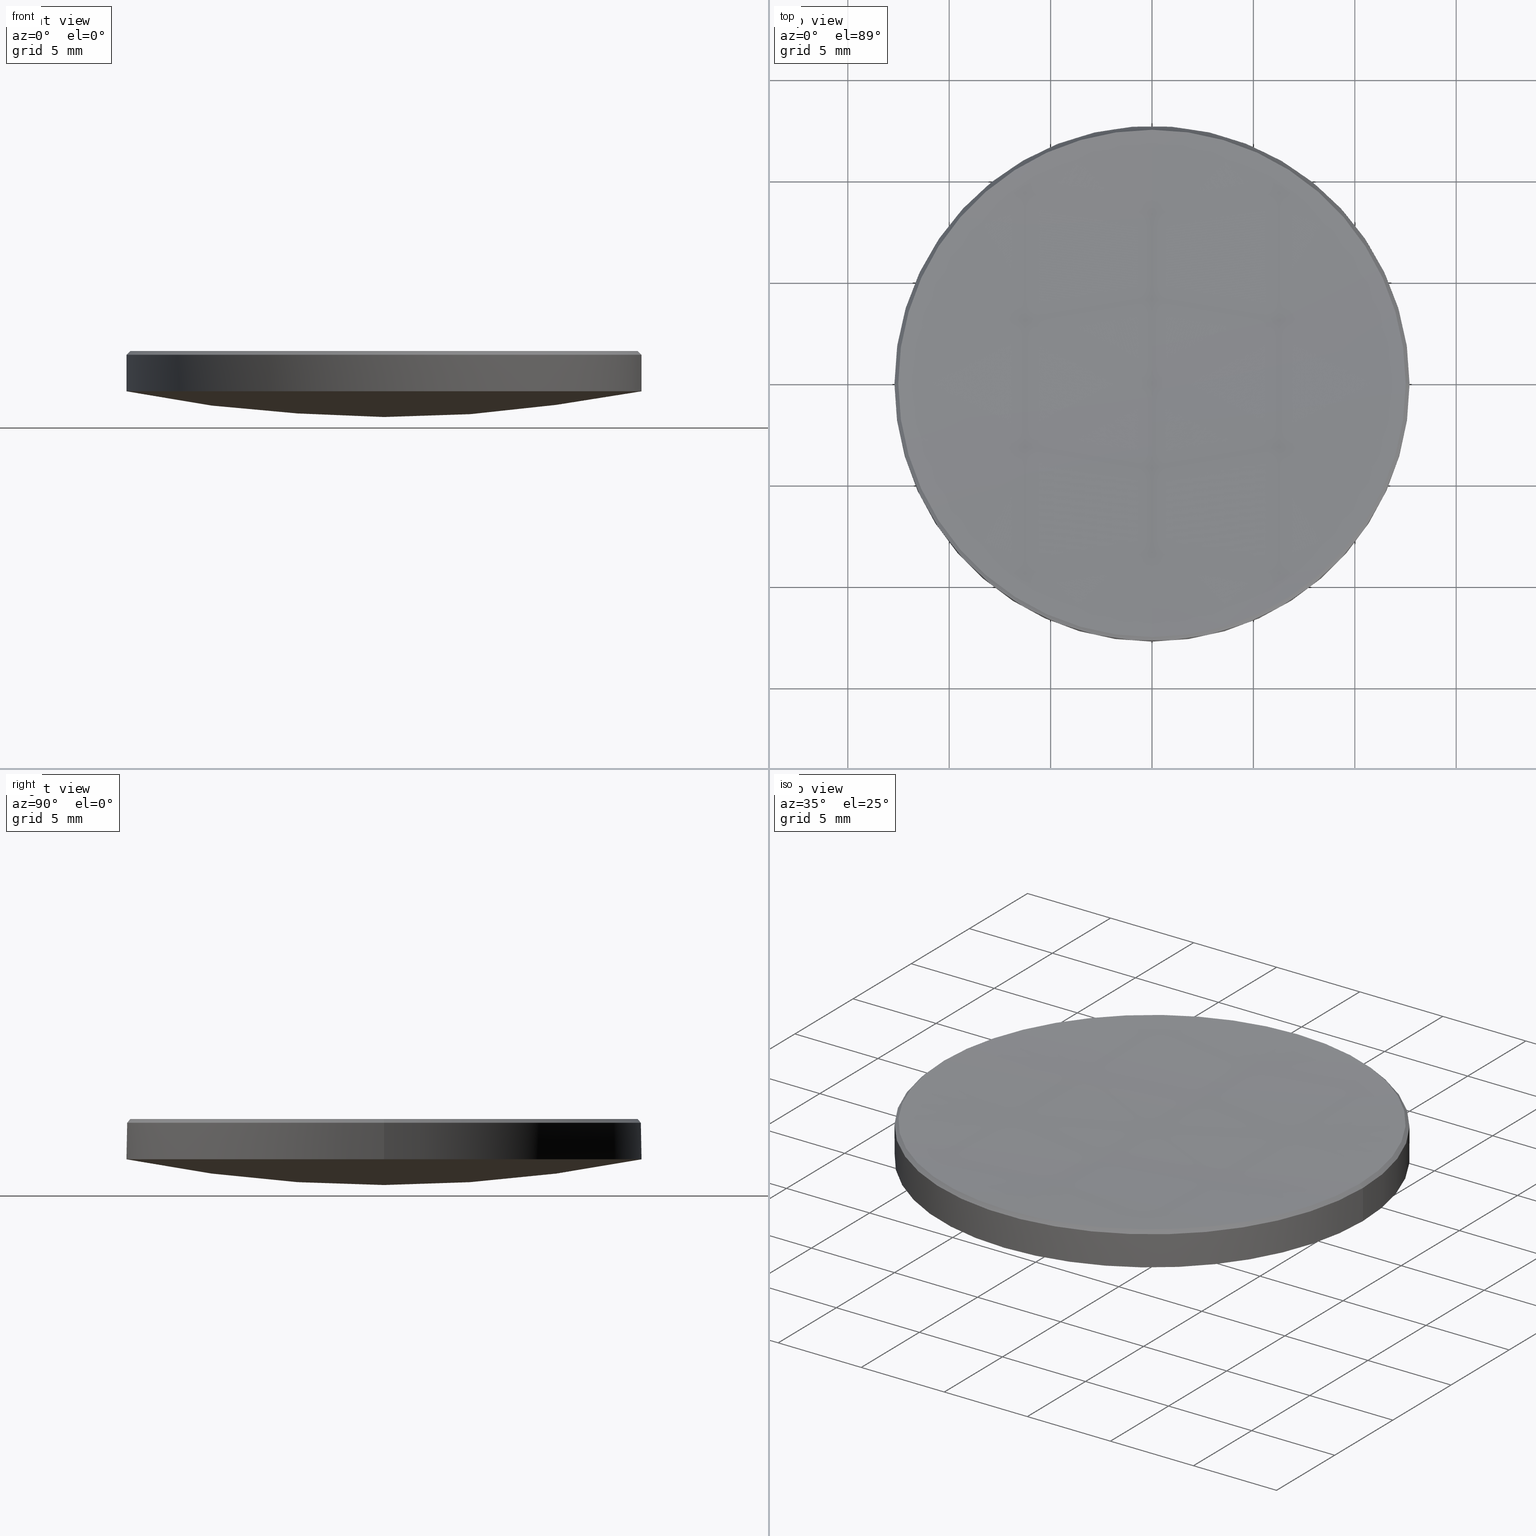
[diagram: canonical four-view strip — front | top / right | iso, engineering-drawing reading convention]
A machine part, canonical four-view strip (front | top / right | iso — engineering-drawing reading convention). The complete STEP part file that produces these views, byte-faithful:
ISO-10303-21;
HEADER;
FILE_DESCRIPTION (( 'STEP AP214' ),
    '1' );
FILE_NAME ('GLM2-025B-200.STEP',
    '2024-08-09T02:44:42',
    ( 'Windows User' ),
    ( 'P R C' ),
    'SwSTEP 2.0',
    'SolidWorks 2022',
    '' );
FILE_SCHEMA (( 'AUTOMOTIVE_DESIGN' ));
ENDSEC;

DATA;
#1 =( NAMED_UNIT ( * ) PLANE_ANGLE_UNIT ( ) SI_UNIT ( $, .RADIAN. ) );
#2 = VERTEX_POINT ( 'NONE', #72 ) ;
#3 = CARTESIAN_POINT ( 'NONE',  ( 0.000000000000000000, 0.000000000000000000, 5.988645407489862293 ) ) ;
#4 = APPLICATION_CONTEXT ( 'automotive_design' ) ;
#5 = EDGE_LOOP ( 'NONE', ( #123, #192, #46, #272, #129 ) ) ;
#6 = EDGE_CURVE ( 'NONE', #62, #2, #256, .T. ) ;
#7 = MECHANICAL_DESIGN_GEOMETRIC_PRESENTATION_REPRESENTATION (  '', ( #200 ), #280 ) ;
#8 = CARTESIAN_POINT ( 'NONE',  ( 0.000000000000000000, 0.000000000000000000, 4.000000000000000000 ) ) ;
#9 = CARTESIAN_POINT ( 'NONE',  ( 0.000000000000000000, 0.000000000000000000, 66.97211763947595387 ) ) ;
#10 = EDGE_CURVE ( 'NONE', #2, #38, #89, .T. ) ;
#11 = SPHERICAL_SURFACE ( 'NONE', #53, 209.8100000000000023 ) ;
#12 = CARTESIAN_POINT ( 'NONE',  ( -12.69999999999999929, 0.000000000000000000, 5.799999999999999822 ) ) ;
#13 = CIRCLE ( 'NONE', #181, 12.69999999999999929 ) ;
#14 = ORIENTED_EDGE ( 'NONE', *, *, #282, .T. ) ;
#15 = PRODUCT_DEFINITION_CONTEXT ( 'detailed design', #22, 'design' ) ;
#16 = DIRECTION ( 'NONE',  ( 1.000000000000000000, 0.000000000000000000, 0.000000000000000000 ) ) ;
#17 = DIRECTION ( 'NONE',  ( -1.000000000000000000, 0.000000000000000000, 0.000000000000000000 ) ) ;
#18 = EDGE_CURVE ( 'NONE', #230, #2, #270, .T. ) ;
#19 = DIRECTION ( 'NONE',  ( 1.000000000000000000, 0.000000000000000000, 0.000000000000000000 ) ) ;
#20 = ORIENTED_EDGE ( 'NONE', *, *, #71, .T. ) ;
#21 = DIRECTION ( 'NONE',  ( 0.000000000000000000, 0.000000000000000000, -1.000000000000000000 ) ) ;
#22 = APPLICATION_CONTEXT ( 'automotive_design' ) ;
#23 = ADVANCED_FACE ( 'NONE', ( #240 ), #48, .T. ) ;
#24 =( NAMED_UNIT ( * ) PLANE_ANGLE_UNIT ( ) SI_UNIT ( $, .RADIAN. ) );
#25 = PRODUCT_CONTEXT ( 'NONE', #4, 'mechanical' ) ;
#26 = DIRECTION ( 'NONE',  ( -1.000000000000000000, 0.000000000000000000, 0.000000000000000000 ) ) ;
#27 = EDGE_CURVE ( 'NONE', #62, #153, #117, .T. ) ;
#28 = PRESENTATION_LAYER_ASSIGNMENT (  '', '', ( #114 ) ) ;
#29 = CARTESIAN_POINT ( 'NONE',  ( 0.000000000000000000, 0.000000000000000000, 5.988645407489862293 ) ) ;
#30 = FACE_OUTER_BOUND ( 'NONE', #259, .T. ) ;
#31 = DIRECTION ( 'NONE',  ( -1.000000000000000000, 1.224646799147353207E-16, 0.000000000000000000 ) ) ;
#32 = SPHERICAL_SURFACE ( 'NONE', #66, 209.8100000000000023 ) ;
#33 = EDGE_CURVE ( 'NONE', #149, #74, #198, .T. ) ;
#34 = DIRECTION ( 'NONE',  ( -1.000000000000000000, 0.000000000000000000, 0.000000000000000000 ) ) ;
#35 = ORIENTED_EDGE ( 'NONE', *, *, #64, .T. ) ;
#36 = AXIS2_PLACEMENT_3D ( 'NONE', #210, #128, #111 ) ;
#37 = FACE_OUTER_BOUND ( 'NONE', #253, .T. ) ;
#38 = VERTEX_POINT ( 'NONE', #94 ) ;
#39 = FACE_OUTER_BOUND ( 'NONE', #206, .T. ) ;
#40 = ORIENTED_EDGE ( 'NONE', *, *, #6, .T. ) ;
#41 = AXIS2_PLACEMENT_3D ( 'NONE', #157, #246, #99 ) ;
#42 = AXIS2_PLACEMENT_3D ( 'NONE', #152, #281, #45 ) ;
#43 = ADVANCED_FACE ( 'NONE', ( #243 ), #180, .T. ) ;
#44 = APPLICATION_PROTOCOL_DEFINITION ( 'draft international standard', 'automotive_design', 1998, #4 ) ;
#45 = DIRECTION ( 'NONE',  ( 0.000000000000000000, 0.000000000000000000, -1.000000000000000000 ) ) ;
#46 = ORIENTED_EDGE ( 'NONE', *, *, #76, .T. ) ;
#47 = SHAPE_DEFINITION_REPRESENTATION ( #183, #242 ) ;
#48 = CYLINDRICAL_SURFACE ( 'NONE', #135, 12.69999999999999929 ) ;
#49 = DIRECTION ( 'NONE',  ( 1.000000000000000000, 0.000000000000000000, 0.000000000000000000 ) ) ;
#50 = ORIENTED_EDGE ( 'NONE', *, *, #33, .F. ) ;
#51 = EDGE_CURVE ( 'NONE', #154, #153, #238, .T. ) ;
#52 = CARTESIAN_POINT ( 'NONE',  ( 0.000000000000000000, 0.000000000000000000, 5.988645407489833872 ) ) ;
#53 = AXIS2_PLACEMENT_3D ( 'NONE', #268, #103, #77 ) ;
#54 = DIRECTION ( 'NONE',  ( 0.000000000000000000, 1.000000000000000000, 0.000000000000000000 ) ) ;
#55 = AXIS2_PLACEMENT_3D ( 'NONE', #9, #34, #54 ) ;
#56 = CARTESIAN_POINT ( 'NONE',  ( 0.000000000000000000, 0.000000000000000000, 66.97211763947595387 ) ) ;
#57 = EDGE_CURVE ( 'NONE', #234, #191, #109, .T. ) ;
#58 = ORIENTED_EDGE ( 'NONE', *, *, #10, .F. ) ;
#59 = CARTESIAN_POINT ( 'NONE',  ( 12.51135459251022652, 1.543750235194328238E-15, 5.988645407489862293 ) ) ;
#60 = VERTEX_POINT ( 'NONE', #207 ) ;
#61 = CARTESIAN_POINT ( 'NONE',  ( 0.000000000000000000, 12.70000000000000995, 4.000000000000001776 ) ) ;
#62 = VERTEX_POINT ( 'NONE', #59 ) ;
#63 = SURFACE_STYLE_USAGE ( .BOTH. , #173 ) ;
#64 = EDGE_CURVE ( 'NONE', #216, #149, #260, .T. ) ;
#65 = AXIS2_PLACEMENT_3D ( 'NONE', #179, #155, #241 ) ;
#66 = AXIS2_PLACEMENT_3D ( 'NONE', #81, #164, #204 ) ;
#67 = FILL_AREA_STYLE_COLOUR ( '', #170 ) ;
#68 = EDGE_LOOP ( 'NONE', ( #190, #96, #20, #209, #92 ) ) ;
#69 = ORIENTED_EDGE ( 'NONE', *, *, #51, .F. ) ;
#70 = CIRCLE ( 'NONE', #222, 12.51135459251022652 ) ;
#71 = EDGE_CURVE ( 'NONE', #154, #191, #107, .T. ) ;
#72 = CARTESIAN_POINT ( 'NONE',  ( 0.000000000000000000, 12.51135459251053916, 5.988645407489848083 ) ) ;
#73 = AXIS2_PLACEMENT_3D ( 'NONE', #275, #257, #151 ) ;
#74 = VERTEX_POINT ( 'NONE', #144 ) ;
#75 = DIRECTION ( 'NONE',  ( 1.000000000000000000, 0.000000000000000000, 0.000000000000000000 ) ) ;
#76 = EDGE_CURVE ( 'NONE', #74, #234, #178, .T. ) ;
#77 = DIRECTION ( 'NONE',  ( 0.000000000000000000, 1.000000000000000000, 0.000000000000000000 ) ) ;
#78 = DIRECTION ( 'NONE',  ( -1.000000000000000000, 0.000000000000000000, 0.000000000000000000 ) ) ;
#79 = FACE_OUTER_BOUND ( 'NONE', #229, .T. ) ;
#80 = ORIENTED_EDGE ( 'NONE', *, *, #27, .T. ) ;
#81 = CARTESIAN_POINT ( 'NONE',  ( 0.000000000000000000, 0.000000000000000000, 215.4252756951748609 ) ) ;
#82 = CARTESIAN_POINT ( 'NONE',  ( 0.000000000000000000, 0.000000000000000000, 5.988645407489862293 ) ) ;
#83 = SURFACE_STYLE_FILL_AREA ( #171 ) ;
#84 = SURFACE_SIDE_STYLE ('',( #83 ) ) ;
#85 = SURFACE_STYLE_FILL_AREA ( #279 ) ;
#86 = ORIENTED_EDGE ( 'NONE', *, *, #64, .F. ) ;
#87 =( LENGTH_UNIT ( ) NAMED_UNIT ( * ) SI_UNIT ( .MILLI., .METRE. ) );
#88 = EDGE_CURVE ( 'NONE', #60, #62, #70, .T. ) ;
#89 = CIRCLE ( 'NONE', #93, 12.51135459251022652 ) ;
#90 =( GEOMETRIC_REPRESENTATION_CONTEXT ( 3 ) GLOBAL_UNCERTAINTY_ASSIGNED_CONTEXT ( ( #201 ) ) GLOBAL_UNIT_ASSIGNED_CONTEXT ( ( #87, #1, #193 ) ) REPRESENTATION_CONTEXT ( 'NONE', 'WORKASPACE' ) );
#91 = AXIS2_PLACEMENT_3D ( 'NONE', #277, #21, #17 ) ;
#92 = ORIENTED_EDGE ( 'NONE', *, *, #33, .T. ) ;
#93 = AXIS2_PLACEMENT_3D ( 'NONE', #29, #197, #49 ) ;
#94 = CARTESIAN_POINT ( 'NONE',  ( -12.51135459251022652, 0.000000000000000000, 5.988645407489862293 ) ) ;
#95 = PRODUCT ( 'GLM2-025B-200', 'GLM2-025B-200', '', ( #25 ) ) ;
#96 = ORIENTED_EDGE ( 'NONE', *, *, #220, .T. ) ;
#97 = DIRECTION ( 'NONE',  ( 0.7071067811864988339, 8.659560562354335050E-17, -0.7071067811865962005 ) ) ;
#98 = CLOSED_SHELL ( 'NONE', ( #266, #101, #136, #43, #23, #121, #194, #115 ) ) ;
#99 = DIRECTION ( 'NONE',  ( 1.000000000000000000, 0.000000000000000000, 0.000000000000000000 ) ) ;
#100 = DIRECTION ( 'NONE',  ( 0.000000000000000000, 1.000000000000000000, 0.000000000000000000 ) ) ;
#101 = ADVANCED_FACE ( 'NONE', ( #30 ), #11, .F. ) ;
#102 = DIRECTION ( 'NONE',  ( 0.000000000000000000, 0.000000000000000000, -1.000000000000000000 ) ) ;
#103 = DIRECTION ( 'NONE',  ( -1.000000000000000000, 0.000000000000000000, 0.000000000000000000 ) ) ;
#104 = PRODUCT_DEFINITION_FORMATION_WITH_SPECIFIED_SOURCE ( '�κ�', '', #95, .NOT_KNOWN. ) ;
#105 = ORIENTED_EDGE ( 'NONE', *, *, #88, .T. ) ;
#106 = DIRECTION ( 'NONE',  ( -0.7071067811864988339, 0.000000000000000000, -0.7071067811865962005 ) ) ;
#107 = LINE ( 'NONE', #250, #150 ) ;
#108 = ORIENTED_EDGE ( 'NONE', *, *, #225, .F. ) ;
#109 = CIRCLE ( 'NONE', #195, 12.69999999999999929 ) ;
#110 = DIRECTION ( 'NONE',  ( -0.000000000000000000, -0.000000000000000000, 1.000000000000000000 ) ) ;
#111 = DIRECTION ( 'NONE',  ( -1.224646799147353207E-16, -1.000000000000000000, 0.000000000000000000 ) ) ;
#112 = ORIENTED_EDGE ( 'NONE', *, *, #76, .F. ) ;
#113 = ORIENTED_EDGE ( 'NONE', *, *, #239, .F. ) ;
#114 = STYLED_ITEM ( 'NONE', ( #233 ), #242 ) ;
#115 = ADVANCED_FACE ( 'NONE', ( #247 ), #262, .T. ) ;
#116 = CARTESIAN_POINT ( 'NONE',  ( 0.000000000000000000, 0.000000000000000000, 215.4252756951748609 ) ) ;
#117 = LINE ( 'NONE', #156, #160 ) ;
#118 = AXIS2_PLACEMENT_3D ( 'NONE', #202, #102, #252 ) ;
#119 = DIRECTION ( 'NONE',  ( -1.000000000000000000, 0.000000000000000000, 0.000000000000000000 ) ) ;
#120 = DIRECTION ( 'NONE',  ( -0.000000000000000000, -0.000000000000000000, 1.000000000000000000 ) ) ;
#121 = ADVANCED_FACE ( 'NONE', ( #37 ), #226, .T. ) ;
#122 = LINE ( 'NONE', #205, #251 ) ;
#123 = ORIENTED_EDGE ( 'NONE', *, *, #51, .T. ) ;
#124 = DIRECTION ( 'NONE',  ( -0.000000000000000000, -0.000000000000000000, -1.000000000000000000 ) ) ;
#125 = ORIENTED_EDGE ( 'NONE', *, *, #57, .F. ) ;
#126 = EDGE_LOOP ( 'NONE', ( #172, #177, #108, #235, #199 ) ) ;
#127 = ORIENTED_EDGE ( 'NONE', *, *, #208, .F. ) ;
#128 = DIRECTION ( 'NONE',  ( -1.000000000000000000, 1.224646799147353207E-16, 0.000000000000000000 ) ) ;
#129 = ORIENTED_EDGE ( 'NONE', *, *, #71, .F. ) ;
#130 = DIRECTION ( 'NONE',  ( 1.000000000000000000, 0.000000000000000000, 0.000000000000000000 ) ) ;
#131 = AXIS2_PLACEMENT_3D ( 'NONE', #3, #265, #138 ) ;
#132 = ORIENTED_EDGE ( 'NONE', *, *, #18, .T. ) ;
#133 = CARTESIAN_POINT ( 'NONE',  ( 0.000000000000000000, 0.000000000000000000, 10.00000000000000000 ) ) ;
#134 = EDGE_LOOP ( 'NONE', ( #211, #132, #185, #264 ) ) ;
#135 = AXIS2_PLACEMENT_3D ( 'NONE', #133, #218, #26 ) ;
#136 = ADVANCED_FACE ( 'NONE', ( #79 ), #141, .T. ) ;
#137 = COLOUR_RGB ( '',1.000000000000000000, 1.000000000000000000, 1.000000000000000000 ) ;
#138 = DIRECTION ( 'NONE',  ( 1.000000000000000000, 0.000000000000000000, 0.000000000000000000 ) ) ;
#139 = CIRCLE ( 'NONE', #42, 64.23999999999999488 ) ;
#140 = DIRECTION ( 'NONE',  ( 0.000000000000000000, 0.000000000000000000, -1.000000000000000000 ) ) ;
#141 = SPHERICAL_SURFACE ( 'NONE', #55, 64.23999999999999488 ) ;
#142 = CARTESIAN_POINT ( 'NONE',  ( 12.69999999999999929, 1.555301434917138433E-15, 5.799999999999999822 ) ) ;
#143 = ORIENTED_EDGE ( 'NONE', *, *, #274, .F. ) ;
#144 = CARTESIAN_POINT ( 'NONE',  ( 12.69999999999999929, 1.555301434917138433E-15, 4.000000000000000000 ) ) ;
#145 = DIRECTION ( 'NONE',  ( -0.000000000000000000, -0.000000000000000000, -1.000000000000000000 ) ) ;
#146 = MECHANICAL_DESIGN_GEOMETRIC_PRESENTATION_REPRESENTATION (  '', ( #114 ), #90 ) ;
#147 = CARTESIAN_POINT ( 'NONE',  ( 0.000000000000000000, 1.284715724645530952E-14, 5.615275695174864801 ) ) ;
#148 =( NAMED_UNIT ( * ) PLANE_ANGLE_UNIT ( ) SI_UNIT ( $, .RADIAN. ) );
#149 = VERTEX_POINT ( 'NONE', #182 ) ;
#150 = VECTOR ( 'NONE', #124, 1000.000000000000000 ) ;
#151 = DIRECTION ( 'NONE',  ( 1.000000000000000000, 0.000000000000000000, 0.000000000000000000 ) ) ;
#152 = CARTESIAN_POINT ( 'NONE',  ( 0.000000000000000000, 0.000000000000000000, 66.97211763947595387 ) ) ;
#153 = VERTEX_POINT ( 'NONE', #142 ) ;
#154 = VERTEX_POINT ( 'NONE', #12 ) ;
#155 = DIRECTION ( 'NONE',  ( 0.000000000000000000, 0.000000000000000000, 1.000000000000000000 ) ) ;
#156 = CARTESIAN_POINT ( 'NONE',  ( 12.51135459251019100, 1.532199035471513902E-15, 5.988645407489833872 ) ) ;
#157 = CARTESIAN_POINT ( 'NONE',  ( 0.000000000000000000, 0.000000000000000000, 4.000000000000000000 ) ) ;
#158 = DIRECTION ( 'NONE',  ( -0.000000000000000000, -0.000000000000000000, 1.000000000000000000 ) ) ;
#159 = DIRECTION ( 'NONE',  ( 1.000000000000000000, 0.000000000000000000, 0.000000000000000000 ) ) ;
#160 = VECTOR ( 'NONE', #97, 1000.000000000000000 ) ;
#161 = UNCERTAINTY_MEASURE_WITH_UNIT (LENGTH_MEASURE( 1.000000000000000082E-05 ), #258, 'distance_accuracy_value', 'NONE');
#162 = CARTESIAN_POINT ( 'NONE',  ( 0.000000000000000000, 0.000000000000000000, 66.97211763947595387 ) ) ;
#163 = AXIS2_PLACEMENT_3D ( 'NONE', #236, #214, #130 ) ;
#164 = DIRECTION ( 'NONE',  ( -1.000000000000000000, 0.000000000000000000, 0.000000000000000000 ) ) ;
#165 = ORIENTED_EDGE ( 'NONE', *, *, #6, .F. ) ;
#166 = UNCERTAINTY_MEASURE_WITH_UNIT (LENGTH_MEASURE( 1.000000000000000082E-05 ), #188, 'distance_accuracy_value', 'NONE');
#167 = DIRECTION ( 'NONE',  ( -0.000000000000000000, -0.000000000000000000, 1.000000000000000000 ) ) ;
#168 = AXIS2_PLACEMENT_3D ( 'NONE', #116, #75, #267 ) ;
#169 = PRESENTATION_STYLE_ASSIGNMENT (( #215 ) ) ;
#170 = COLOUR_RGB ( '',1.000000000000000000, 1.000000000000000000, 1.000000000000000000 ) ;
#171 = FILL_AREA_STYLE ('',( #67 ) ) ;
#172 = ORIENTED_EDGE ( 'NONE', *, *, #27, .F. ) ;
#173 = SURFACE_SIDE_STYLE ('',( #85 ) ) ;
#174 = AXIS2_PLACEMENT_3D ( 'NONE', #56, #119, #100 ) ;
#175 = PRESENTATION_LAYER_ASSIGNMENT (  '', '', ( #200 ) ) ;
#176 = CARTESIAN_POINT ( 'NONE',  ( 0.000000000000000000, 0.000000000000000000, 4.000000000000000000 ) ) ;
#177 = ORIENTED_EDGE ( 'NONE', *, *, #88, .F. ) ;
#178 = CIRCLE ( 'NONE', #187, 12.69999999999999929 ) ;
#179 = CARTESIAN_POINT ( 'NONE',  ( 0.000000000000000000, 0.000000000000000000, 0.000000000000000000 ) ) ;
#180 = CYLINDRICAL_SURFACE ( 'NONE', #248, 12.69999999999999929 ) ;
#181 = AXIS2_PLACEMENT_3D ( 'NONE', #176, #110, #19 ) ;
#182 = CARTESIAN_POINT ( 'NONE',  ( -1.555301434917139616E-15, -12.70000000000000995, 4.000000000000001776 ) ) ;
#183 = PRODUCT_DEFINITION_SHAPE ( 'NONE', 'NONE',  #254 ) ;
#184 = CARTESIAN_POINT ( 'NONE',  ( 12.69999999999999929, 1.555301434917138433E-15, 10.00000000000000000 ) ) ;
#185 = ORIENTED_EDGE ( 'NONE', *, *, #10, .T. ) ;
#186 = CARTESIAN_POINT ( 'NONE',  ( 0.000000000000000000, 3.933565518861297976E-15, 2.732117639475964310 ) ) ;
#187 = AXIS2_PLACEMENT_3D ( 'NONE', #8, #120, #249 ) ;
#188 =( LENGTH_UNIT ( ) NAMED_UNIT ( * ) SI_UNIT ( .MILLI., .METRE. ) );
#189 = FILL_AREA_STYLE_COLOUR ( '', #137 ) ;
#190 = ORIENTED_EDGE ( 'NONE', *, *, #203, .F. ) ;
#191 = VERTEX_POINT ( 'NONE', #255 ) ;
#192 = ORIENTED_EDGE ( 'NONE', *, *, #203, .T. ) ;
#193 =( NAMED_UNIT ( * ) SI_UNIT ( $, .STERADIAN. ) SOLID_ANGLE_UNIT ( ) );
#194 = ADVANCED_FACE ( 'NONE', ( #271 ), #32, .F. ) ;
#195 = AXIS2_PLACEMENT_3D ( 'NONE', #228, #158, #16 ) ;
#196 = CONICAL_SURFACE ( 'NONE', #91, 12.51135459251019100, 0.7853981633973793341 ) ;
#197 = DIRECTION ( 'NONE',  ( -0.000000000000000000, -0.000000000000000000, 1.000000000000000000 ) ) ;
#198 = CIRCLE ( 'NONE', #41, 12.69999999999999929 ) ;
#199 = ORIENTED_EDGE ( 'NONE', *, *, #220, .F. ) ;
#200 = STYLED_ITEM ( 'NONE', ( #169 ), #276 ) ;
#201 = UNCERTAINTY_MEASURE_WITH_UNIT (LENGTH_MEASURE( 1.000000000000000082E-05 ), #87, 'distance_accuracy_value', 'NONE');
#202 = CARTESIAN_POINT ( 'NONE',  ( 0.000000000000000000, 0.000000000000000000, 5.799999999999999822 ) ) ;
#203 = EDGE_CURVE ( 'NONE', #153, #74, #224, .T. ) ;
#204 = DIRECTION ( 'NONE',  ( 0.000000000000000000, 1.000000000000000000, 0.000000000000000000 ) ) ;
#205 = CARTESIAN_POINT ( 'NONE',  ( -12.51135459251019100, 0.000000000000000000, 5.988645407489833872 ) ) ;
#206 = EDGE_LOOP ( 'NONE', ( #165, #80, #69, #127, #58 ) ) ;
#207 = CARTESIAN_POINT ( 'NONE',  ( -1.532199035471557290E-15, -12.51135459251053916, 5.988645407489848083 ) ) ;
#208 = EDGE_CURVE ( 'NONE', #38, #154, #122, .T. ) ;
#209 = ORIENTED_EDGE ( 'NONE', *, *, #274, .T. ) ;
#210 = CARTESIAN_POINT ( 'NONE',  ( 0.000000000000000000, 0.000000000000000000, 215.4252756951748609 ) ) ;
#211 = ORIENTED_EDGE ( 'NONE', *, *, #282, .F. ) ;
#212 = AXIS2_PLACEMENT_3D ( 'NONE', #52, #140, #273 ) ;
#213 = VECTOR ( 'NONE', #227, 1000.000000000000000 ) ;
#214 = DIRECTION ( 'NONE',  ( -0.000000000000000000, -0.000000000000000000, 1.000000000000000000 ) ) ;
#215 = SURFACE_STYLE_USAGE ( .BOTH. , #84 ) ;
#216 = VERTEX_POINT ( 'NONE', #186 ) ;
#217 = ORIENTED_EDGE ( 'NONE', *, *, #18, .F. ) ;
#218 = DIRECTION ( 'NONE',  ( -0.000000000000000000, -0.000000000000000000, -1.000000000000000000 ) ) ;
#219 = CIRCLE ( 'NONE', #36, 209.8100000000000023 ) ;
#220 = EDGE_CURVE ( 'NONE', #153, #154, #221, .T. ) ;
#221 = CIRCLE ( 'NONE', #73, 12.69999999999999929 ) ;
#222 = AXIS2_PLACEMENT_3D ( 'NONE', #82, #167, #159 ) ;
#223 = DIRECTION ( 'NONE',  ( -1.224646799147353207E-16, -1.000000000000000000, 0.000000000000000000 ) ) ;
#224 = LINE ( 'NONE', #184, #213 ) ;
#225 = EDGE_CURVE ( 'NONE', #38, #60, #261, .T. ) ;
#226 = SPHERICAL_SURFACE ( 'NONE', #174, 64.23999999999999488 ) ;
#227 = DIRECTION ( 'NONE',  ( -0.000000000000000000, -0.000000000000000000, -1.000000000000000000 ) ) ;
#228 = CARTESIAN_POINT ( 'NONE',  ( 0.000000000000000000, 0.000000000000000000, 4.000000000000000000 ) ) ;
#229 = EDGE_LOOP ( 'NONE', ( #113, #35, #143, #125 ) ) ;
#230 = VERTEX_POINT ( 'NONE', #147 ) ;
#231 =( NAMED_UNIT ( * ) SI_UNIT ( $, .STERADIAN. ) SOLID_ANGLE_UNIT ( ) );
#232 = AXIS2_PLACEMENT_3D ( 'NONE', #162, #31, #223 ) ;
#233 = PRESENTATION_STYLE_ASSIGNMENT (( #63 ) ) ;
#234 = VERTEX_POINT ( 'NONE', #61 ) ;
#235 = ORIENTED_EDGE ( 'NONE', *, *, #208, .T. ) ;
#236 = CARTESIAN_POINT ( 'NONE',  ( 0.000000000000000000, 0.000000000000000000, 5.988645407489862293 ) ) ;
#237 = ORIENTED_EDGE ( 'NONE', *, *, #239, .T. ) ;
#238 = CIRCLE ( 'NONE', #118, 12.69999999999999929 ) ;
#239 = EDGE_CURVE ( 'NONE', #216, #234, #139, .T. ) ;
#240 = FACE_OUTER_BOUND ( 'NONE', #68, .T. ) ;
#241 = DIRECTION ( 'NONE',  ( 1.000000000000000000, 0.000000000000000000, 0.000000000000000000 ) ) ;
#242 = ADVANCED_BREP_SHAPE_REPRESENTATION ( 'GLM2-025B-200', ( #276, #65 ), #245 ) ;
#243 = FACE_OUTER_BOUND ( 'NONE', #5, .T. ) ;
#244 = PRODUCT_RELATED_PRODUCT_CATEGORY ( 'part', '', ( #95 ) ) ;
#245 =( GEOMETRIC_REPRESENTATION_CONTEXT ( 3 ) GLOBAL_UNCERTAINTY_ASSIGNED_CONTEXT ( ( #161 ) ) GLOBAL_UNIT_ASSIGNED_CONTEXT ( ( #258, #148, #231 ) ) REPRESENTATION_CONTEXT ( 'NONE', 'WORKASPACE' ) );
#246 = DIRECTION ( 'NONE',  ( -0.000000000000000000, -0.000000000000000000, 1.000000000000000000 ) ) ;
#247 = FACE_OUTER_BOUND ( 'NONE', #126, .T. ) ;
#248 = AXIS2_PLACEMENT_3D ( 'NONE', #269, #145, #78 ) ;
#249 = DIRECTION ( 'NONE',  ( 1.000000000000000000, 0.000000000000000000, 0.000000000000000000 ) ) ;
#250 = CARTESIAN_POINT ( 'NONE',  ( -12.69999999999999929, 0.000000000000000000, 10.00000000000000000 ) ) ;
#251 = VECTOR ( 'NONE', #106, 1000.000000000000000 ) ;
#252 = DIRECTION ( 'NONE',  ( 1.000000000000000000, 0.000000000000000000, 0.000000000000000000 ) ) ;
#253 = EDGE_LOOP ( 'NONE', ( #86, #237, #112, #50 ) ) ;
#254 = PRODUCT_DEFINITION ( 'δ֪', '', #104, #15 ) ;
#255 = CARTESIAN_POINT ( 'NONE',  ( -12.69999999999999929, 0.000000000000000000, 4.000000000000000000 ) ) ;
#256 = CIRCLE ( 'NONE', #131, 12.51135459251022652 ) ;
#257 = DIRECTION ( 'NONE',  ( 0.000000000000000000, 0.000000000000000000, -1.000000000000000000 ) ) ;
#258 =( LENGTH_UNIT ( ) NAMED_UNIT ( * ) SI_UNIT ( .MILLI., .METRE. ) );
#259 = EDGE_LOOP ( 'NONE', ( #217, #14, #105, #40 ) ) ;
#260 = CIRCLE ( 'NONE', #232, 64.23999999999999488 ) ;
#261 = CIRCLE ( 'NONE', #163, 12.51135459251022652 ) ;
#262 = CONICAL_SURFACE ( 'NONE', #212, 12.51135459251019100, 0.7853981633973793341 ) ;
#263 = APPLICATION_PROTOCOL_DEFINITION ( 'draft international standard', 'automotive_design', 1998, #22 ) ;
#264 = ORIENTED_EDGE ( 'NONE', *, *, #225, .T. ) ;
#265 = DIRECTION ( 'NONE',  ( -0.000000000000000000, -0.000000000000000000, 1.000000000000000000 ) ) ;
#266 = ADVANCED_FACE ( 'NONE', ( #39 ), #196, .T. ) ;
#267 = DIRECTION ( 'NONE',  ( 0.000000000000000000, 0.000000000000000000, -1.000000000000000000 ) ) ;
#268 = CARTESIAN_POINT ( 'NONE',  ( 0.000000000000000000, 0.000000000000000000, 215.4252756951748609 ) ) ;
#269 = CARTESIAN_POINT ( 'NONE',  ( 0.000000000000000000, 0.000000000000000000, 10.00000000000000000 ) ) ;
#270 = CIRCLE ( 'NONE', #168, 209.8100000000000023 ) ;
#271 = FACE_OUTER_BOUND ( 'NONE', #134, .T. ) ;
#272 = ORIENTED_EDGE ( 'NONE', *, *, #57, .T. ) ;
#273 = DIRECTION ( 'NONE',  ( -1.000000000000000000, 0.000000000000000000, 0.000000000000000000 ) ) ;
#274 = EDGE_CURVE ( 'NONE', #191, #149, #13, .T. ) ;
#275 = CARTESIAN_POINT ( 'NONE',  ( 0.000000000000000000, 0.000000000000000000, 5.799999999999999822 ) ) ;
#276 = MANIFOLD_SOLID_BREP ( '����1', #98 ) ;
#277 = CARTESIAN_POINT ( 'NONE',  ( 0.000000000000000000, 0.000000000000000000, 5.988645407489833872 ) ) ;
#278 =( NAMED_UNIT ( * ) SI_UNIT ( $, .STERADIAN. ) SOLID_ANGLE_UNIT ( ) );
#279 = FILL_AREA_STYLE ('',( #189 ) ) ;
#280 =( GEOMETRIC_REPRESENTATION_CONTEXT ( 3 ) GLOBAL_UNCERTAINTY_ASSIGNED_CONTEXT ( ( #166 ) ) GLOBAL_UNIT_ASSIGNED_CONTEXT ( ( #188, #24, #278 ) ) REPRESENTATION_CONTEXT ( 'NONE', 'WORKASPACE' ) );
#281 = DIRECTION ( 'NONE',  ( 1.000000000000000000, -0.000000000000000000, 0.000000000000000000 ) ) ;
#282 = EDGE_CURVE ( 'NONE', #230, #60, #219, .T. ) ;
ENDSEC;
END-ISO-10303-21;
